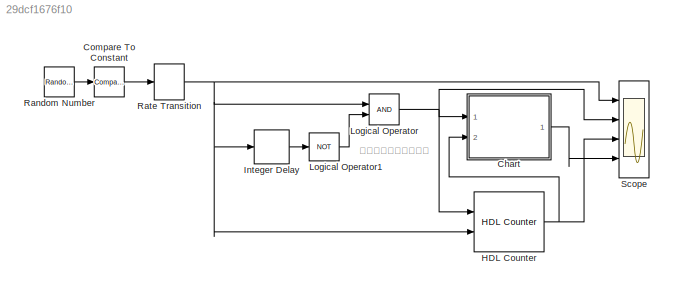
MODEL slx_29dcf1676f10
KIND model
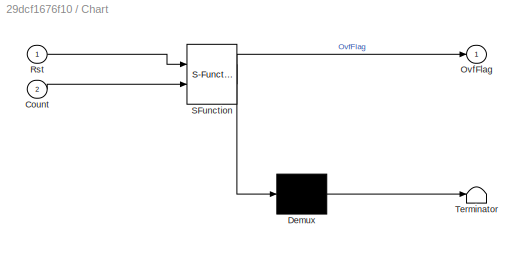
BLOCK [SubSystem] Chart
  ErrorFcn = Stateflow.Translate.translate
  PermitHierarchicalResolution = ExplicitOnly
  Ports = [2, 1]
  RequestExecContextInheritance = off
  SFBlockType = Chart
  TreatAsAtomicUnit = on
BLOCK [Demux] Chart/ Demux 
  Outputs = 1
  Ports = [1, 1]
BLOCK [S-Function] Chart/ SFunction 
  EnableBusSupport = on
  FunctionName = sf_sfun
  PortCounts = [2 2]
  Ports = [2, 2]
  Tag = Stateflow S-Function CountOvf_step4 1
BLOCK [Terminator] Chart/ Terminator 
BLOCK [Inport] Chart/Count
  IconDisplay = Port number
  Port = 2
BLOCK [Outport] Chart/OvfFlag
  IconDisplay = Port number
BLOCK [Inport] Chart/Rst
  IconDisplay = Port number
BLOCK [Reference] Compare To Constant  REF=simulink/Logic and Bit
Operations/Compare
To Constant
  OutDataTypeStr = boolean
  Ports = [1, 1]
  SourceBlock = simulink/Logic and Bit\nOperations/Compare\nTo Constant
  SourceType = Compare To Constant
  ZeroCross = off
  const = 0.8
  relop = <=
BLOCK [Reference] HDL Counter  REF=hdlsllib/HDL Operations/HDL Counter
  CountDataType = Unsigned
  CountDirPort = off
  CountEnbPort = on
  CountFracLen = 0
  CountFrom = 1
  CountFromType = Initial value
  CountInit = 1
  CountLoadPort = off
  CountMax = 100
  CountResetPort = on
  CountSampTime = 1
  CountStep = 1
  CountType = Free running
  CountWordLen = 8
  Ports = [2, 1]
  SourceBlock = hdlsllib/HDL Operations/HDL Counter
  SourceType = HDL Counter
BLOCK [Delay] Integer Delay
  DelayLength = 1
  InputPortMap = u0
  InputProcessing = Inherited
  Ports = [1, 1]
BLOCK [Logic] Logical Operator
  AllPortsSameDT = off
  OutDataTypeStr = boolean
  Ports = [2, 1]
BLOCK [Logic] Logical Operator1
  AllPortsSameDT = off
  Operator = NOT
  OutDataTypeStr = boolean
  Ports = [1, 1]
BLOCK [RandomNumber] Random Number
  SampleTime = 70
BLOCK [RateTransition] Rate Transition
  OutPortSampleTime = 1
BLOCK [Scope] Scope
  DataFormat = StructureWithTime
  Floating = off
  NumInputPorts = 4
  Ports = [4]
  SampleTime = 0
  ShowLegends = off
  TimeRange = 1000
  YMax = 2~2~260~5
  YMin = -1~-1~-1~-5
  ZoomMode = xonly
ANNOTATION (root): 立ち上がりエッジ検出
LINE Chart:1 -> Scope:4
LINE Compare To Constant:1 -> Rate Transition:1
NET HDL Counter:1 -> Chart:2, Scope:3
LINE Integer Delay:1 -> Logical Operator1:1
LINE Logical Operator1:1 -> Logical Operator:2
NET Logical Operator:1 -> Chart:1, HDL Counter:1, Scope:2
LINE Random Number:1 -> Compare To Constant:1
NET Rate Transition:1 -> HDL Counter:2, Integer Delay:1, Logical Operator:1, Scope:1
note: NET lines group one-source signal fan-out (src -> all destinations, sorted); 1:1 wires keep LINE
CHART Chart states=3 transitions=7
  STATE_LABEL 'CountMax'
  STATE_LABEL 'Init'
  STATE_LABEL 'Ovf'
